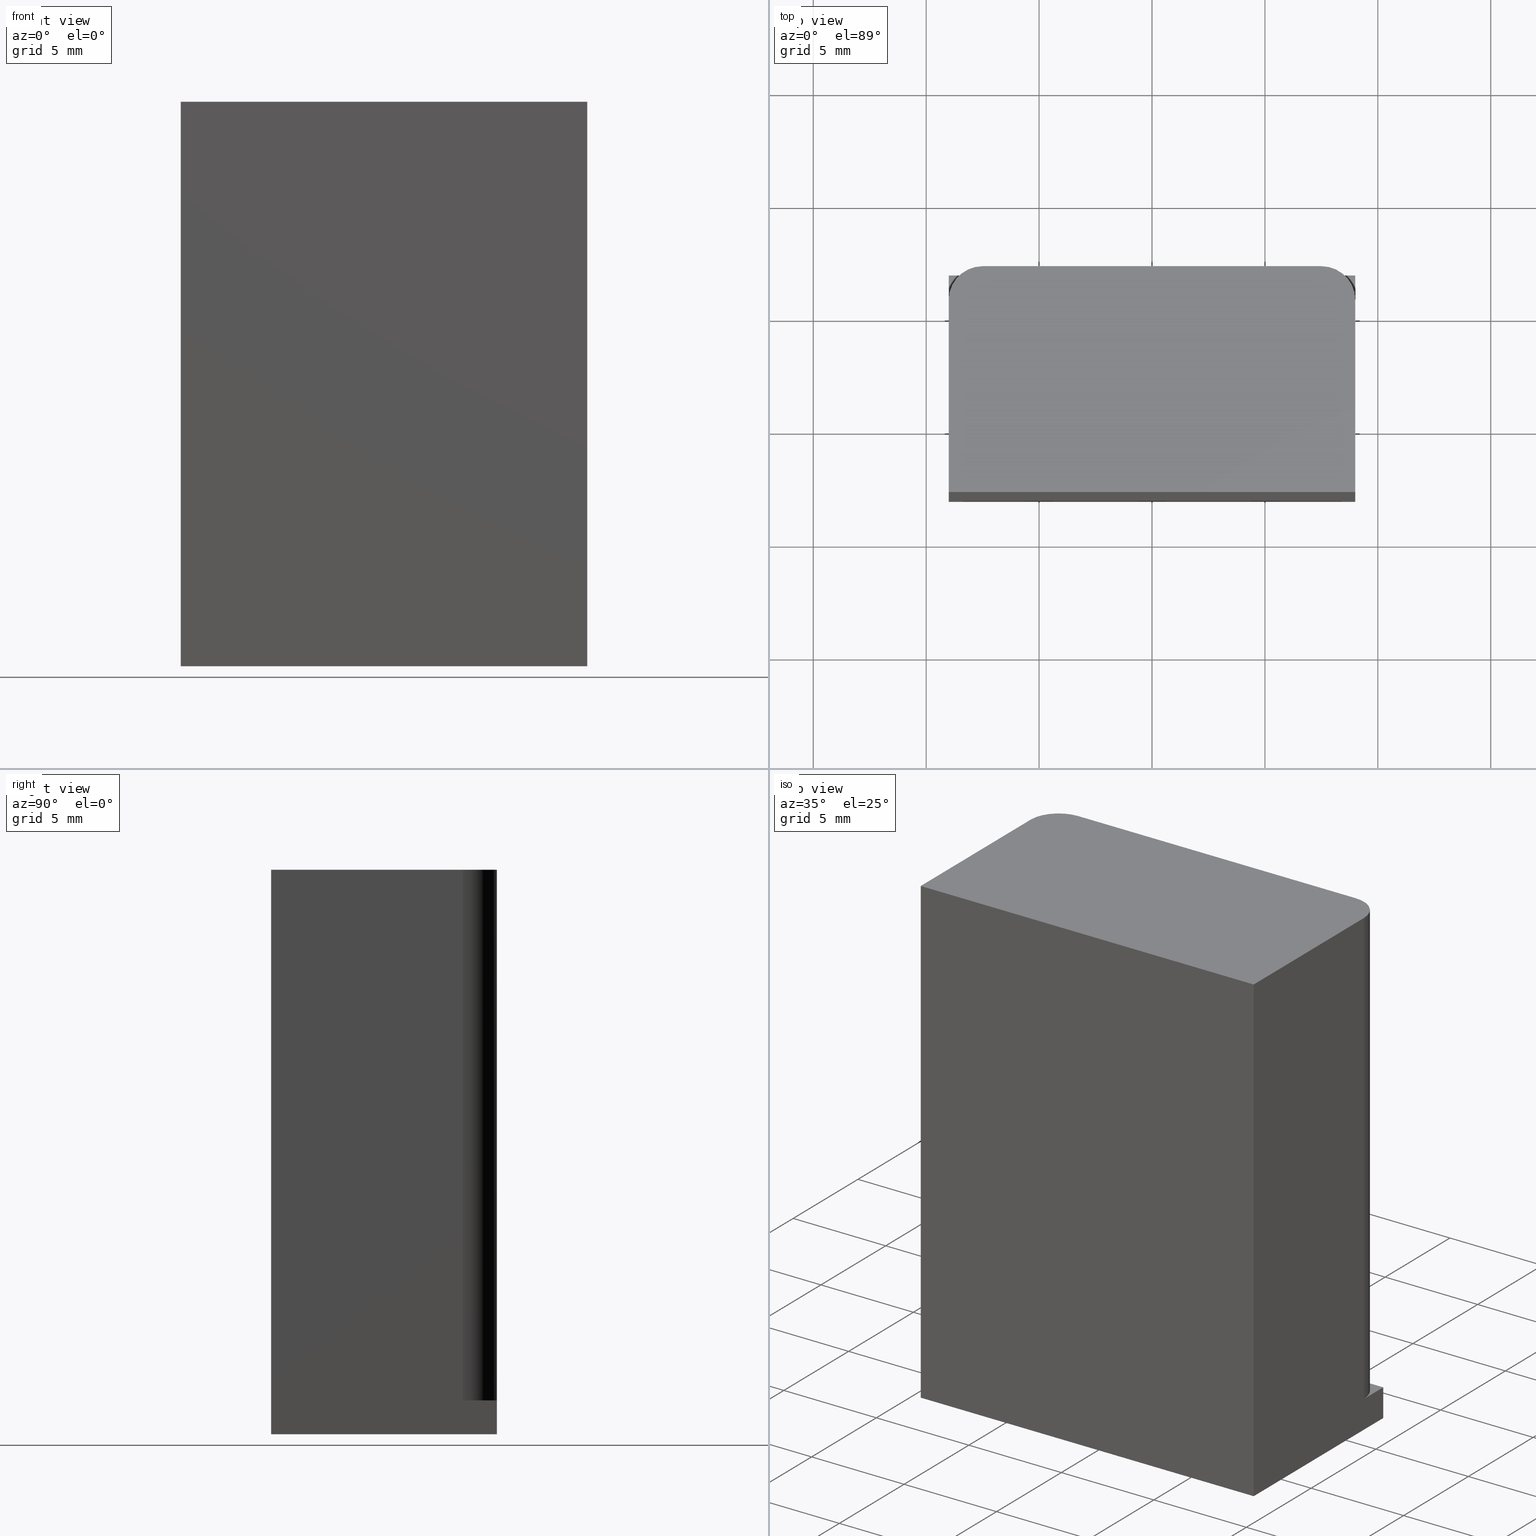
[diagram: canonical four-view strip — front | top / right | iso, engineering-drawing reading convention]
A machine part, canonical four-view strip (front | top / right | iso — engineering-drawing reading convention). The complete STEP part file that produces these views, byte-faithful:
ISO-10303-21;
HEADER;
/* Generated by software containing ST-Developer
 * from STEP Tools, Inc. (www.steptools.com) 
 */

FILE_DESCRIPTION(
/* description */ (''),
/* implementation_level */ '2;1');

FILE_NAME(
/* name */ 'E_3_01_02_00_00_WKZ-0190.stp',
/* time_stamp */ '2025-11-24T12:58:11+01:00',
/* author */ ('d.fischer'),
/* organization */ (''),
/* preprocessor_version */ 'ST-DEVELOPER v20',
/* originating_system */ 'Autodesk Inventor 2025',
/* authorisation */ '');

FILE_SCHEMA (('AUTOMOTIVE_DESIGN { 1 0 10303 214 3 1 1 }'));
ENDSEC;

DATA;
#10=MECHANICAL_DESIGN_GEOMETRIC_PRESENTATION_REPRESENTATION('',(#23,#24),
#809);
#11=ITEM_DEFINED_TRANSFORMATION($,$,#515,#551);
#12=ITEM_DEFINED_TRANSFORMATION($,$,#542,#552);
#13=(
REPRESENTATION_RELATIONSHIP($,$,#823,#822)
REPRESENTATION_RELATIONSHIP_WITH_TRANSFORMATION(#11)
SHAPE_REPRESENTATION_RELATIONSHIP()
);
#14=(
REPRESENTATION_RELATIONSHIP($,$,#824,#822)
REPRESENTATION_RELATIONSHIP_WITH_TRANSFORMATION(#12)
SHAPE_REPRESENTATION_RELATIONSHIP()
);
#15=CONTEXT_DEPENDENT_SHAPE_REPRESENTATION(#13,#820);
#16=CONTEXT_DEPENDENT_SHAPE_REPRESENTATION(#14,#821);
#17=NEXT_ASSEMBLY_USAGE_OCCURRENCE('E_3_01_02_00_00_WKZ-0190_Teil1:1',
'E_3_01_02_00_00_WKZ-0190_Teil1:1','E_3_01_02_00_00_WKZ-0190_Teil1:1',#826,
#827,'E_3_01_02_00_00_WKZ-0190_Teil1:1');
#18=NEXT_ASSEMBLY_USAGE_OCCURRENCE('E_3_01_02_00_00_WKZ-0190_Teil2:1',
'E_3_01_02_00_00_WKZ-0190_Teil2:1','E_3_01_02_00_00_WKZ-0190_Teil2:1',#826,
#828,'E_3_01_02_00_00_WKZ-0190_Teil2:1');
#19=SHAPE_REPRESENTATION_RELATIONSHIP('SRR','None',#823,#21);
#20=SHAPE_REPRESENTATION_RELATIONSHIP('SRR','None',#824,#22);
#21=ADVANCED_BREP_SHAPE_REPRESENTATION('',(#25),#807);
#22=ADVANCED_BREP_SHAPE_REPRESENTATION('',(#26),#808);
#23=STYLED_ITEM('',(#478),#25);
#24=STYLED_ITEM('',(#479),#26);
#25=MANIFOLD_SOLID_BREP('Volumenk\X\F6rper1',#450);
#26=MANIFOLD_SOLID_BREP('Volumenk\X\F6rper1',#451);
#27=FACE_BOUND('',#81,.T.);
#28=FACE_BOUND('',#82,.T.);
#29=FACE_BOUND('',#83,.T.);
#30=FACE_BOUND('',#88,.T.);
#31=FACE_BOUND('',#89,.T.);
#32=FACE_BOUND('',#90,.T.);
#33=FACE_BOUND('',#96,.T.);
#34=PLANE('',#525);
#35=PLANE('',#526);
#36=PLANE('',#527);
#37=PLANE('',#528);
#38=PLANE('',#529);
#39=PLANE('',#533);
#40=PLANE('',#537);
#41=PLANE('',#538);
#42=PLANE('',#539);
#43=PLANE('',#540);
#44=PLANE('',#541);
#45=PLANE('',#543);
#46=PLANE('',#544);
#47=PLANE('',#545);
#48=PLANE('',#546);
#49=PLANE('',#547);
#50=PLANE('',#548);
#51=PLANE('',#549);
#52=PLANE('',#550);
#53=FACE_OUTER_BOUND('',#77,.T.);
#54=FACE_OUTER_BOUND('',#78,.T.);
#55=FACE_OUTER_BOUND('',#79,.T.);
#56=FACE_OUTER_BOUND('',#80,.T.);
#57=FACE_OUTER_BOUND('',#84,.T.);
#58=FACE_OUTER_BOUND('',#85,.T.);
#59=FACE_OUTER_BOUND('',#86,.T.);
#60=FACE_OUTER_BOUND('',#87,.T.);
#61=FACE_OUTER_BOUND('',#91,.T.);
#62=FACE_OUTER_BOUND('',#92,.T.);
#63=FACE_OUTER_BOUND('',#93,.T.);
#64=FACE_OUTER_BOUND('',#94,.T.);
#65=FACE_OUTER_BOUND('',#95,.T.);
#66=FACE_OUTER_BOUND('',#97,.T.);
#67=FACE_OUTER_BOUND('',#98,.T.);
#68=FACE_OUTER_BOUND('',#99,.T.);
#69=FACE_OUTER_BOUND('',#100,.T.);
#70=FACE_OUTER_BOUND('',#101,.T.);
#71=FACE_OUTER_BOUND('',#102,.T.);
#72=FACE_OUTER_BOUND('',#103,.T.);
#73=FACE_OUTER_BOUND('',#104,.T.);
#74=FACE_OUTER_BOUND('',#105,.T.);
#75=FACE_OUTER_BOUND('',#106,.T.);
#76=FACE_OUTER_BOUND('',#107,.T.);
#77=EDGE_LOOP('',(#307,#308,#309,#310));
#78=EDGE_LOOP('',(#311,#312,#313,#314));
#79=EDGE_LOOP('',(#315,#316,#317,#318));
#80=EDGE_LOOP('',(#319,#320,#321,#322));
#81=EDGE_LOOP('',(#323));
#82=EDGE_LOOP('',(#324));
#83=EDGE_LOOP('',(#325));
#84=EDGE_LOOP('',(#326,#327,#328,#329));
#85=EDGE_LOOP('',(#330,#331,#332,#333));
#86=EDGE_LOOP('',(#334,#335,#336,#337));
#87=EDGE_LOOP('',(#338,#339,#340,#341));
#88=EDGE_LOOP('',(#342));
#89=EDGE_LOOP('',(#343));
#90=EDGE_LOOP('',(#344));
#91=EDGE_LOOP('',(#345,#346,#347,#348));
#92=EDGE_LOOP('',(#349,#350,#351,#352));
#93=EDGE_LOOP('',(#353,#354,#355,#356));
#94=EDGE_LOOP('',(#357,#358,#359,#360));
#95=EDGE_LOOP('',(#361,#362,#363,#364));
#96=EDGE_LOOP('',(#365,#366,#367,#368));
#97=EDGE_LOOP('',(#369,#370,#371,#372));
#98=EDGE_LOOP('',(#373,#374,#375,#376,#377,#378));
#99=EDGE_LOOP('',(#379,#380,#381,#382,#383,#384));
#100=EDGE_LOOP('',(#385,#386,#387,#388));
#101=EDGE_LOOP('',(#389,#390,#391,#392));
#102=EDGE_LOOP('',(#393,#394,#395,#396));
#103=EDGE_LOOP('',(#397,#398,#399,#400,#401,#402));
#104=EDGE_LOOP('',(#403,#404,#405,#406,#407,#408));
#105=EDGE_LOOP('',(#409,#410,#411,#412));
#106=EDGE_LOOP('',(#413,#414,#415,#416));
#107=EDGE_LOOP('',(#417,#418,#419,#420));
#108=LINE('',#684,#155);
#109=LINE('',#690,#156);
#110=LINE('',#696,#157);
#111=LINE('',#701,#158);
#112=LINE('',#703,#159);
#113=LINE('',#705,#160);
#114=LINE('',#706,#161);
#115=LINE('',#709,#162);
#116=LINE('',#711,#163);
#117=LINE('',#712,#164);
#118=LINE('',#715,#165);
#119=LINE('',#716,#166);
#120=LINE('',#719,#167);
#121=LINE('',#720,#168);
#122=LINE('',#722,#169);
#123=LINE('',#728,#170);
#124=LINE('',#731,#171);
#125=LINE('',#734,#172);
#126=LINE('',#736,#173);
#127=LINE('',#737,#174);
#128=LINE('',#743,#175);
#129=LINE('',#746,#176);
#130=LINE('',#748,#177);
#131=LINE('',#749,#178);
#132=LINE('',#752,#179);
#133=LINE('',#754,#180);
#134=LINE('',#755,#181);
#135=LINE('',#757,#182);
#136=LINE('',#758,#183);
#137=LINE('',#765,#184);
#138=LINE('',#767,#185);
#139=LINE('',#769,#186);
#140=LINE('',#770,#187);
#141=LINE('',#773,#188);
#142=LINE('',#775,#189);
#143=LINE('',#776,#190);
#144=LINE('',#779,#191);
#145=LINE('',#781,#192);
#146=LINE('',#782,#193);
#147=LINE('',#785,#194);
#148=LINE('',#787,#195);
#149=LINE('',#788,#196);
#150=LINE('',#791,#197);
#151=LINE('',#793,#198);
#152=LINE('',#794,#199);
#153=LINE('',#796,#200);
#154=LINE('',#797,#201);
#155=VECTOR('',#561,1.);
#156=VECTOR('',#568,1.);
#157=VECTOR('',#575,1.);
#158=VECTOR('',#580,10.);
#159=VECTOR('',#581,10.);
#160=VECTOR('',#582,10.);
#161=VECTOR('',#583,10.);
#162=VECTOR('',#586,10.);
#163=VECTOR('',#587,10.);
#164=VECTOR('',#588,10.);
#165=VECTOR('',#591,10.);
#166=VECTOR('',#592,10.);
#167=VECTOR('',#595,10.);
#168=VECTOR('',#596,10.);
#169=VECTOR('',#599,10.);
#170=VECTOR('',#604,10.);
#171=VECTOR('',#607,10.);
#172=VECTOR('',#610,10.);
#173=VECTOR('',#611,10.);
#174=VECTOR('',#612,10.);
#175=VECTOR('',#619,10.);
#176=VECTOR('',#622,10.);
#177=VECTOR('',#623,10.);
#178=VECTOR('',#624,10.);
#179=VECTOR('',#627,10.);
#180=VECTOR('',#628,10.);
#181=VECTOR('',#629,10.);
#182=VECTOR('',#632,10.);
#183=VECTOR('',#633,10.);
#184=VECTOR('',#642,10.);
#185=VECTOR('',#643,10.);
#186=VECTOR('',#644,10.);
#187=VECTOR('',#645,10.);
#188=VECTOR('',#648,10.);
#189=VECTOR('',#649,10.);
#190=VECTOR('',#650,10.);
#191=VECTOR('',#653,10.);
#192=VECTOR('',#654,10.);
#193=VECTOR('',#655,10.);
#194=VECTOR('',#658,10.);
#195=VECTOR('',#659,10.);
#196=VECTOR('',#660,10.);
#197=VECTOR('',#663,10.);
#198=VECTOR('',#664,10.);
#199=VECTOR('',#665,10.);
#200=VECTOR('',#668,10.);
#201=VECTOR('',#669,10.);
#202=CIRCLE('',#517,1.);
#203=CIRCLE('',#518,1.);
#204=CIRCLE('',#520,1.);
#205=CIRCLE('',#521,1.);
#206=CIRCLE('',#523,1.);
#207=CIRCLE('',#524,1.);
#208=CIRCLE('',#531,1.5);
#209=CIRCLE('',#532,1.5);
#210=CIRCLE('',#535,1.5);
#211=CIRCLE('',#536,1.5);
#212=VERTEX_POINT('',#681);
#213=VERTEX_POINT('',#683);
#214=VERTEX_POINT('',#687);
#215=VERTEX_POINT('',#689);
#216=VERTEX_POINT('',#693);
#217=VERTEX_POINT('',#695);
#218=VERTEX_POINT('',#699);
#219=VERTEX_POINT('',#700);
#220=VERTEX_POINT('',#702);
#221=VERTEX_POINT('',#704);
#222=VERTEX_POINT('',#708);
#223=VERTEX_POINT('',#710);
#224=VERTEX_POINT('',#714);
#225=VERTEX_POINT('',#718);
#226=VERTEX_POINT('',#724);
#227=VERTEX_POINT('',#725);
#228=VERTEX_POINT('',#727);
#229=VERTEX_POINT('',#729);
#230=VERTEX_POINT('',#733);
#231=VERTEX_POINT('',#735);
#232=VERTEX_POINT('',#739);
#233=VERTEX_POINT('',#741);
#234=VERTEX_POINT('',#745);
#235=VERTEX_POINT('',#747);
#236=VERTEX_POINT('',#751);
#237=VERTEX_POINT('',#753);
#238=VERTEX_POINT('',#763);
#239=VERTEX_POINT('',#764);
#240=VERTEX_POINT('',#766);
#241=VERTEX_POINT('',#768);
#242=VERTEX_POINT('',#772);
#243=VERTEX_POINT('',#774);
#244=VERTEX_POINT('',#778);
#245=VERTEX_POINT('',#780);
#246=VERTEX_POINT('',#784);
#247=VERTEX_POINT('',#786);
#248=VERTEX_POINT('',#790);
#249=VERTEX_POINT('',#792);
#250=EDGE_CURVE('',#212,#212,#202,.T.);
#251=EDGE_CURVE('',#212,#213,#108,.T.);
#252=EDGE_CURVE('',#213,#213,#203,.T.);
#253=EDGE_CURVE('',#214,#214,#204,.T.);
#254=EDGE_CURVE('',#214,#215,#109,.T.);
#255=EDGE_CURVE('',#215,#215,#205,.T.);
#256=EDGE_CURVE('',#216,#216,#206,.T.);
#257=EDGE_CURVE('',#216,#217,#110,.T.);
#258=EDGE_CURVE('',#217,#217,#207,.T.);
#259=EDGE_CURVE('',#218,#219,#111,.T.);
#260=EDGE_CURVE('',#218,#220,#112,.T.);
#261=EDGE_CURVE('',#220,#221,#113,.T.);
#262=EDGE_CURVE('',#221,#219,#114,.T.);
#263=EDGE_CURVE('',#222,#218,#115,.T.);
#264=EDGE_CURVE('',#223,#222,#116,.T.);
#265=EDGE_CURVE('',#220,#223,#117,.T.);
#266=EDGE_CURVE('',#224,#223,#118,.T.);
#267=EDGE_CURVE('',#221,#224,#119,.T.);
#268=EDGE_CURVE('',#225,#224,#120,.T.);
#269=EDGE_CURVE('',#219,#225,#121,.T.);
#270=EDGE_CURVE('',#225,#222,#122,.T.);
#271=EDGE_CURVE('',#226,#227,#208,.T.);
#272=EDGE_CURVE('',#226,#228,#123,.T.);
#273=EDGE_CURVE('',#229,#228,#209,.T.);
#274=EDGE_CURVE('',#227,#229,#124,.T.);
#275=EDGE_CURVE('',#227,#230,#125,.T.);
#276=EDGE_CURVE('',#231,#229,#126,.T.);
#277=EDGE_CURVE('',#230,#231,#127,.T.);
#278=EDGE_CURVE('',#230,#232,#210,.T.);
#279=EDGE_CURVE('',#233,#231,#211,.T.);
#280=EDGE_CURVE('',#232,#233,#128,.T.);
#281=EDGE_CURVE('',#232,#234,#129,.T.);
#282=EDGE_CURVE('',#235,#233,#130,.T.);
#283=EDGE_CURVE('',#234,#235,#131,.T.);
#284=EDGE_CURVE('',#234,#236,#132,.T.);
#285=EDGE_CURVE('',#237,#235,#133,.T.);
#286=EDGE_CURVE('',#236,#237,#134,.T.);
#287=EDGE_CURVE('',#236,#226,#135,.T.);
#288=EDGE_CURVE('',#228,#237,#136,.T.);
#289=EDGE_CURVE('',#238,#239,#137,.T.);
#290=EDGE_CURVE('',#240,#238,#138,.T.);
#291=EDGE_CURVE('',#240,#241,#139,.T.);
#292=EDGE_CURVE('',#239,#241,#140,.T.);
#293=EDGE_CURVE('',#242,#240,#141,.T.);
#294=EDGE_CURVE('',#243,#242,#142,.T.);
#295=EDGE_CURVE('',#241,#243,#143,.T.);
#296=EDGE_CURVE('',#244,#242,#144,.T.);
#297=EDGE_CURVE('',#244,#245,#145,.T.);
#298=EDGE_CURVE('',#245,#243,#146,.T.);
#299=EDGE_CURVE('',#246,#238,#147,.T.);
#300=EDGE_CURVE('',#247,#246,#148,.T.);
#301=EDGE_CURVE('',#247,#244,#149,.T.);
#302=EDGE_CURVE('',#245,#248,#150,.T.);
#303=EDGE_CURVE('',#248,#249,#151,.T.);
#304=EDGE_CURVE('',#239,#249,#152,.T.);
#305=EDGE_CURVE('',#248,#247,#153,.T.);
#306=EDGE_CURVE('',#249,#246,#154,.T.);
#307=ORIENTED_EDGE('',*,*,#250,.F.);
#308=ORIENTED_EDGE('',*,*,#251,.T.);
#309=ORIENTED_EDGE('',*,*,#252,.F.);
#310=ORIENTED_EDGE('',*,*,#251,.F.);
#311=ORIENTED_EDGE('',*,*,#253,.F.);
#312=ORIENTED_EDGE('',*,*,#254,.T.);
#313=ORIENTED_EDGE('',*,*,#255,.F.);
#314=ORIENTED_EDGE('',*,*,#254,.F.);
#315=ORIENTED_EDGE('',*,*,#256,.F.);
#316=ORIENTED_EDGE('',*,*,#257,.T.);
#317=ORIENTED_EDGE('',*,*,#258,.F.);
#318=ORIENTED_EDGE('',*,*,#257,.F.);
#319=ORIENTED_EDGE('',*,*,#259,.F.);
#320=ORIENTED_EDGE('',*,*,#260,.T.);
#321=ORIENTED_EDGE('',*,*,#261,.T.);
#322=ORIENTED_EDGE('',*,*,#262,.T.);
#323=ORIENTED_EDGE('',*,*,#250,.T.);
#324=ORIENTED_EDGE('',*,*,#253,.T.);
#325=ORIENTED_EDGE('',*,*,#256,.T.);
#326=ORIENTED_EDGE('',*,*,#263,.F.);
#327=ORIENTED_EDGE('',*,*,#264,.F.);
#328=ORIENTED_EDGE('',*,*,#265,.F.);
#329=ORIENTED_EDGE('',*,*,#260,.F.);
#330=ORIENTED_EDGE('',*,*,#265,.T.);
#331=ORIENTED_EDGE('',*,*,#266,.F.);
#332=ORIENTED_EDGE('',*,*,#267,.F.);
#333=ORIENTED_EDGE('',*,*,#261,.F.);
#334=ORIENTED_EDGE('',*,*,#267,.T.);
#335=ORIENTED_EDGE('',*,*,#268,.F.);
#336=ORIENTED_EDGE('',*,*,#269,.F.);
#337=ORIENTED_EDGE('',*,*,#262,.F.);
#338=ORIENTED_EDGE('',*,*,#270,.F.);
#339=ORIENTED_EDGE('',*,*,#268,.T.);
#340=ORIENTED_EDGE('',*,*,#266,.T.);
#341=ORIENTED_EDGE('',*,*,#264,.T.);
#342=ORIENTED_EDGE('',*,*,#252,.T.);
#343=ORIENTED_EDGE('',*,*,#255,.T.);
#344=ORIENTED_EDGE('',*,*,#258,.T.);
#345=ORIENTED_EDGE('',*,*,#271,.F.);
#346=ORIENTED_EDGE('',*,*,#272,.T.);
#347=ORIENTED_EDGE('',*,*,#273,.F.);
#348=ORIENTED_EDGE('',*,*,#274,.F.);
#349=ORIENTED_EDGE('',*,*,#275,.F.);
#350=ORIENTED_EDGE('',*,*,#274,.T.);
#351=ORIENTED_EDGE('',*,*,#276,.F.);
#352=ORIENTED_EDGE('',*,*,#277,.F.);
#353=ORIENTED_EDGE('',*,*,#278,.F.);
#354=ORIENTED_EDGE('',*,*,#277,.T.);
#355=ORIENTED_EDGE('',*,*,#279,.F.);
#356=ORIENTED_EDGE('',*,*,#280,.F.);
#357=ORIENTED_EDGE('',*,*,#281,.F.);
#358=ORIENTED_EDGE('',*,*,#280,.T.);
#359=ORIENTED_EDGE('',*,*,#282,.F.);
#360=ORIENTED_EDGE('',*,*,#283,.F.);
#361=ORIENTED_EDGE('',*,*,#284,.F.);
#362=ORIENTED_EDGE('',*,*,#283,.T.);
#363=ORIENTED_EDGE('',*,*,#285,.F.);
#364=ORIENTED_EDGE('',*,*,#286,.F.);
#365=ORIENTED_EDGE('',*,*,#259,.T.);
#366=ORIENTED_EDGE('',*,*,#269,.T.);
#367=ORIENTED_EDGE('',*,*,#270,.T.);
#368=ORIENTED_EDGE('',*,*,#263,.T.);
#369=ORIENTED_EDGE('',*,*,#287,.F.);
#370=ORIENTED_EDGE('',*,*,#286,.T.);
#371=ORIENTED_EDGE('',*,*,#288,.F.);
#372=ORIENTED_EDGE('',*,*,#272,.F.);
#373=ORIENTED_EDGE('',*,*,#288,.T.);
#374=ORIENTED_EDGE('',*,*,#285,.T.);
#375=ORIENTED_EDGE('',*,*,#282,.T.);
#376=ORIENTED_EDGE('',*,*,#279,.T.);
#377=ORIENTED_EDGE('',*,*,#276,.T.);
#378=ORIENTED_EDGE('',*,*,#273,.T.);
#379=ORIENTED_EDGE('',*,*,#287,.T.);
#380=ORIENTED_EDGE('',*,*,#271,.T.);
#381=ORIENTED_EDGE('',*,*,#275,.T.);
#382=ORIENTED_EDGE('',*,*,#278,.T.);
#383=ORIENTED_EDGE('',*,*,#281,.T.);
#384=ORIENTED_EDGE('',*,*,#284,.T.);
#385=ORIENTED_EDGE('',*,*,#289,.F.);
#386=ORIENTED_EDGE('',*,*,#290,.F.);
#387=ORIENTED_EDGE('',*,*,#291,.T.);
#388=ORIENTED_EDGE('',*,*,#292,.F.);
#389=ORIENTED_EDGE('',*,*,#293,.F.);
#390=ORIENTED_EDGE('',*,*,#294,.F.);
#391=ORIENTED_EDGE('',*,*,#295,.F.);
#392=ORIENTED_EDGE('',*,*,#291,.F.);
#393=ORIENTED_EDGE('',*,*,#294,.T.);
#394=ORIENTED_EDGE('',*,*,#296,.F.);
#395=ORIENTED_EDGE('',*,*,#297,.T.);
#396=ORIENTED_EDGE('',*,*,#298,.T.);
#397=ORIENTED_EDGE('',*,*,#293,.T.);
#398=ORIENTED_EDGE('',*,*,#290,.T.);
#399=ORIENTED_EDGE('',*,*,#299,.F.);
#400=ORIENTED_EDGE('',*,*,#300,.F.);
#401=ORIENTED_EDGE('',*,*,#301,.T.);
#402=ORIENTED_EDGE('',*,*,#296,.T.);
#403=ORIENTED_EDGE('',*,*,#295,.T.);
#404=ORIENTED_EDGE('',*,*,#298,.F.);
#405=ORIENTED_EDGE('',*,*,#302,.T.);
#406=ORIENTED_EDGE('',*,*,#303,.T.);
#407=ORIENTED_EDGE('',*,*,#304,.F.);
#408=ORIENTED_EDGE('',*,*,#292,.T.);
#409=ORIENTED_EDGE('',*,*,#305,.T.);
#410=ORIENTED_EDGE('',*,*,#300,.T.);
#411=ORIENTED_EDGE('',*,*,#306,.F.);
#412=ORIENTED_EDGE('',*,*,#303,.F.);
#413=ORIENTED_EDGE('',*,*,#289,.T.);
#414=ORIENTED_EDGE('',*,*,#304,.T.);
#415=ORIENTED_EDGE('',*,*,#306,.T.);
#416=ORIENTED_EDGE('',*,*,#299,.T.);
#417=ORIENTED_EDGE('',*,*,#305,.F.);
#418=ORIENTED_EDGE('',*,*,#302,.F.);
#419=ORIENTED_EDGE('',*,*,#297,.F.);
#420=ORIENTED_EDGE('',*,*,#301,.F.);
#421=CYLINDRICAL_SURFACE('',#516,1.);
#422=CYLINDRICAL_SURFACE('',#519,1.);
#423=CYLINDRICAL_SURFACE('',#522,1.);
#424=CYLINDRICAL_SURFACE('',#530,1.5);
#425=CYLINDRICAL_SURFACE('',#534,1.5);
#426=ADVANCED_FACE('',(#53),#421,.F.);
#427=ADVANCED_FACE('',(#54),#422,.F.);
#428=ADVANCED_FACE('',(#55),#423,.F.);
#429=ADVANCED_FACE('',(#56,#27,#28,#29),#34,.T.);
#430=ADVANCED_FACE('',(#57),#35,.T.);
#431=ADVANCED_FACE('',(#58),#36,.T.);
#432=ADVANCED_FACE('',(#59),#37,.T.);
#433=ADVANCED_FACE('',(#60,#30,#31,#32),#38,.F.);
#434=ADVANCED_FACE('',(#61),#424,.T.);
#435=ADVANCED_FACE('',(#62),#39,.T.);
#436=ADVANCED_FACE('',(#63),#425,.T.);
#437=ADVANCED_FACE('',(#64),#40,.T.);
#438=ADVANCED_FACE('',(#65,#33),#41,.T.);
#439=ADVANCED_FACE('',(#66),#42,.T.);
#440=ADVANCED_FACE('',(#67),#43,.T.);
#441=ADVANCED_FACE('',(#68),#44,.F.);
#442=ADVANCED_FACE('',(#69),#45,.F.);
#443=ADVANCED_FACE('',(#70),#46,.T.);
#444=ADVANCED_FACE('',(#71),#47,.T.);
#445=ADVANCED_FACE('',(#72),#48,.T.);
#446=ADVANCED_FACE('',(#73),#49,.T.);
#447=ADVANCED_FACE('',(#74),#50,.T.);
#448=ADVANCED_FACE('',(#75),#51,.T.);
#449=ADVANCED_FACE('',(#76),#52,.F.);
#450=CLOSED_SHELL('',(#426,#427,#428,#429,#430,#431,#432,#433,#434,#435,
#436,#437,#438,#439,#440,#441));
#451=CLOSED_SHELL('',(#442,#443,#444,#445,#446,#447,#448,#449));
#452=DERIVED_UNIT_ELEMENT(#457,1.);
#453=DERIVED_UNIT_ELEMENT(#811,-3.);
#454=DERIVED_UNIT_ELEMENT(#457,1.);
#455=DERIVED_UNIT_ELEMENT(#811,-3.);
#456=DIMENSIONAL_EXPONENTS(0.,1.,0.,0.,0.,0.,0.);
#457=(
CONVERSION_BASED_UNIT('gram',#459)
MASS_UNIT()
NAMED_UNIT(#456)
);
#458=(
MASS_UNIT()
NAMED_UNIT(*)
SI_UNIT(.KILO.,.GRAM.)
);
#459=MASS_MEASURE_WITH_UNIT(MASS_MEASURE(0.001),#458);
#460=DERIVED_UNIT((#452,#453));
#461=DERIVED_UNIT((#454,#455));
#462=MEASURE_REPRESENTATION_ITEM('density measure',
POSITIVE_RATIO_MEASURE(1.),#460);
#463=MEASURE_REPRESENTATION_ITEM('density measure',
POSITIVE_RATIO_MEASURE(1.06),#461);
#464=PROPERTY_DEFINITION_REPRESENTATION(#474,#468);
#465=PROPERTY_DEFINITION_REPRESENTATION(#475,#469);
#466=PROPERTY_DEFINITION_REPRESENTATION(#476,#470);
#467=PROPERTY_DEFINITION_REPRESENTATION(#477,#471);
#468=REPRESENTATION('material name',(#472),#807);
#469=REPRESENTATION('density',(#462),#807);
#470=REPRESENTATION('material name',(#473),#808);
#471=REPRESENTATION('density',(#463),#808);
#472=DESCRIPTIVE_REPRESENTATION_ITEM('Allgemein','Allgemein');
#473=DESCRIPTIVE_REPRESENTATION_ITEM('ABS-Kunststoff','ABS-Kunststoff');
#474=PROPERTY_DEFINITION('material property','material name',#827);
#475=PROPERTY_DEFINITION('material property','density of part',#827);
#476=PROPERTY_DEFINITION('material property','material name',#828);
#477=PROPERTY_DEFINITION('material property','density of part',#828);
#478=PRESENTATION_STYLE_ASSIGNMENT((#480));
#479=PRESENTATION_STYLE_ASSIGNMENT((#481));
#480=SURFACE_STYLE_USAGE(.BOTH.,#486);
#481=SURFACE_STYLE_USAGE(.BOTH.,#487);
#482=SURFACE_STYLE_RENDERING_WITH_PROPERTIES($,#494,(#484));
#483=SURFACE_STYLE_RENDERING_WITH_PROPERTIES($,#495,(#485));
#484=SURFACE_STYLE_TRANSPARENT(0.);
#485=SURFACE_STYLE_TRANSPARENT(0.);
#486=SURFACE_SIDE_STYLE('',(#488,#482));
#487=SURFACE_SIDE_STYLE('',(#489,#483));
#488=SURFACE_STYLE_FILL_AREA(#490);
#489=SURFACE_STYLE_FILL_AREA(#491);
#490=FILL_AREA_STYLE('',(#492));
#491=FILL_AREA_STYLE('',(#493));
#492=FILL_AREA_STYLE_COLOUR('',#494);
#493=FILL_AREA_STYLE_COLOUR('',#495);
#494=COLOUR_RGB('',0.905882352941176,0.83921568627451,0.674509803921569);
#495=COLOUR_RGB('',0.850980392156863,0.847058823529412,0.913725490196078);
#496=DATE_TIME_ROLE('creation_date');
#497=DATE_TIME_ROLE('creation_date');
#498=DATE_TIME_ROLE('creation_date');
#499=APPLIED_DATE_AND_TIME_ASSIGNMENT(#502,#496,(#826));
#500=APPLIED_DATE_AND_TIME_ASSIGNMENT(#503,#497,(#827));
#501=APPLIED_DATE_AND_TIME_ASSIGNMENT(#504,#498,(#828));
#502=DATE_AND_TIME(#505,#508);
#503=DATE_AND_TIME(#506,#509);
#504=DATE_AND_TIME(#507,#510);
#505=CALENDAR_DATE(2013,16,8);
#506=CALENDAR_DATE(2013,16,8);
#507=CALENDAR_DATE(2013,16,8);
#508=LOCAL_TIME(0,0,0.,#511);
#509=LOCAL_TIME(0,0,0.,#512);
#510=LOCAL_TIME(0,0,0.,#513);
#511=COORDINATED_UNIVERSAL_TIME_OFFSET(0,0,.BEHIND.);
#512=COORDINATED_UNIVERSAL_TIME_OFFSET(0,0,.BEHIND.);
#513=COORDINATED_UNIVERSAL_TIME_OFFSET(0,0,.BEHIND.);
#514=AXIS2_PLACEMENT_3D('',#678,#553,#554);
#515=AXIS2_PLACEMENT_3D('',#679,#555,#556);
#516=AXIS2_PLACEMENT_3D('',#680,#557,#558);
#517=AXIS2_PLACEMENT_3D('',#682,#559,#560);
#518=AXIS2_PLACEMENT_3D('',#685,#562,#563);
#519=AXIS2_PLACEMENT_3D('',#686,#564,#565);
#520=AXIS2_PLACEMENT_3D('',#688,#566,#567);
#521=AXIS2_PLACEMENT_3D('',#691,#569,#570);
#522=AXIS2_PLACEMENT_3D('',#692,#571,#572);
#523=AXIS2_PLACEMENT_3D('',#694,#573,#574);
#524=AXIS2_PLACEMENT_3D('',#697,#576,#577);
#525=AXIS2_PLACEMENT_3D('',#698,#578,#579);
#526=AXIS2_PLACEMENT_3D('',#707,#584,#585);
#527=AXIS2_PLACEMENT_3D('',#713,#589,#590);
#528=AXIS2_PLACEMENT_3D('',#717,#593,#594);
#529=AXIS2_PLACEMENT_3D('',#721,#597,#598);
#530=AXIS2_PLACEMENT_3D('',#723,#600,#601);
#531=AXIS2_PLACEMENT_3D('',#726,#602,#603);
#532=AXIS2_PLACEMENT_3D('',#730,#605,#606);
#533=AXIS2_PLACEMENT_3D('',#732,#608,#609);
#534=AXIS2_PLACEMENT_3D('',#738,#613,#614);
#535=AXIS2_PLACEMENT_3D('',#740,#615,#616);
#536=AXIS2_PLACEMENT_3D('',#742,#617,#618);
#537=AXIS2_PLACEMENT_3D('',#744,#620,#621);
#538=AXIS2_PLACEMENT_3D('',#750,#625,#626);
#539=AXIS2_PLACEMENT_3D('',#756,#630,#631);
#540=AXIS2_PLACEMENT_3D('',#759,#634,#635);
#541=AXIS2_PLACEMENT_3D('',#760,#636,#637);
#542=AXIS2_PLACEMENT_3D('',#761,#638,#639);
#543=AXIS2_PLACEMENT_3D('',#762,#640,#641);
#544=AXIS2_PLACEMENT_3D('',#771,#646,#647);
#545=AXIS2_PLACEMENT_3D('',#777,#651,#652);
#546=AXIS2_PLACEMENT_3D('',#783,#656,#657);
#547=AXIS2_PLACEMENT_3D('',#789,#661,#662);
#548=AXIS2_PLACEMENT_3D('',#795,#666,#667);
#549=AXIS2_PLACEMENT_3D('',#798,#670,#671);
#550=AXIS2_PLACEMENT_3D('',#799,#672,#673);
#551=AXIS2_PLACEMENT_3D('',#800,#674,#675);
#552=AXIS2_PLACEMENT_3D('',#801,#676,#677);
#553=DIRECTION('axis',(0.,0.,1.));
#554=DIRECTION('refdir',(1.,0.,0.));
#555=DIRECTION('axis',(0.,0.,1.));
#556=DIRECTION('refdir',(1.,0.,0.));
#557=DIRECTION('center_axis',(0.,0.,1.));
#558=DIRECTION('ref_axis',(1.,0.,0.));
#559=DIRECTION('center_axis',(0.,0.,-1.));
#560=DIRECTION('ref_axis',(1.,0.,0.));
#561=DIRECTION('',(0.,0.,-1.));
#562=DIRECTION('center_axis',(0.,0.,1.));
#563=DIRECTION('ref_axis',(1.,0.,0.));
#564=DIRECTION('center_axis',(0.,0.,1.));
#565=DIRECTION('ref_axis',(1.,0.,0.));
#566=DIRECTION('center_axis',(0.,0.,-1.));
#567=DIRECTION('ref_axis',(1.,0.,0.));
#568=DIRECTION('',(0.,0.,-1.));
#569=DIRECTION('center_axis',(0.,0.,1.));
#570=DIRECTION('ref_axis',(1.,0.,0.));
#571=DIRECTION('center_axis',(0.,0.,1.));
#572=DIRECTION('ref_axis',(1.,0.,0.));
#573=DIRECTION('center_axis',(0.,0.,-1.));
#574=DIRECTION('ref_axis',(1.,0.,0.));
#575=DIRECTION('',(0.,0.,-1.));
#576=DIRECTION('center_axis',(0.,0.,1.));
#577=DIRECTION('ref_axis',(1.,0.,0.));
#578=DIRECTION('center_axis',(0.,0.,1.));
#579=DIRECTION('ref_axis',(1.,0.,0.));
#580=DIRECTION('',(1.,4.31753398465339E-16,0.));
#581=DIRECTION('',(0.,-1.,0.));
#582=DIRECTION('',(1.,3.1720657846433E-16,0.));
#583=DIRECTION('',(-5.55111512312578E-16,1.,0.));
#584=DIRECTION('center_axis',(-1.,0.,0.));
#585=DIRECTION('ref_axis',(0.,1.,0.));
#586=DIRECTION('',(0.,0.,1.));
#587=DIRECTION('',(0.,1.,0.));
#588=DIRECTION('',(0.,0.,-1.));
#589=DIRECTION('center_axis',(3.1720657846433E-16,-1.,0.));
#590=DIRECTION('ref_axis',(-1.,-3.1720657846433E-16,0.));
#591=DIRECTION('',(-1.,-3.1720657846433E-16,0.));
#592=DIRECTION('',(0.,0.,-1.));
#593=DIRECTION('center_axis',(1.,5.55111512312578E-16,0.));
#594=DIRECTION('ref_axis',(5.55111512312578E-16,-1.,0.));
#595=DIRECTION('',(5.55111512312578E-16,-1.,0.));
#596=DIRECTION('',(0.,0.,-1.));
#597=DIRECTION('center_axis',(0.,0.,1.));
#598=DIRECTION('ref_axis',(1.,0.,0.));
#599=DIRECTION('',(-1.,-4.31753398465339E-16,0.));
#600=DIRECTION('center_axis',(0.,0.,1.));
#601=DIRECTION('ref_axis',(7.40148683083437E-16,-1.,0.));
#602=DIRECTION('center_axis',(0.,0.,-1.));
#603=DIRECTION('ref_axis',(7.40148683083437E-16,-1.,0.));
#604=DIRECTION('',(0.,0.,1.));
#605=DIRECTION('center_axis',(0.,0.,1.));
#606=DIRECTION('ref_axis',(7.40148683083437E-16,-1.,0.));
#607=DIRECTION('',(0.,0.,1.));
#608=DIRECTION('center_axis',(-4.07081775695891E-16,1.,0.));
#609=DIRECTION('ref_axis',(-1.,-4.07081775695891E-16,0.));
#610=DIRECTION('',(1.,4.07081775695891E-16,0.));
#611=DIRECTION('',(-1.,-4.07081775695891E-16,0.));
#612=DIRECTION('',(0.,0.,1.));
#613=DIRECTION('center_axis',(0.,0.,1.));
#614=DIRECTION('ref_axis',(-1.,-7.40148683083438E-16,0.));
#615=DIRECTION('center_axis',(0.,0.,-1.));
#616=DIRECTION('ref_axis',(-1.,-7.40148683083438E-16,0.));
#617=DIRECTION('center_axis',(0.,0.,1.));
#618=DIRECTION('ref_axis',(-1.,-7.40148683083438E-16,0.));
#619=DIRECTION('',(0.,0.,1.));
#620=DIRECTION('center_axis',(1.,2.22044604925029E-15,0.));
#621=DIRECTION('ref_axis',(-2.22044604925029E-15,1.,0.));
#622=DIRECTION('',(2.22044604925029E-15,-1.,0.));
#623=DIRECTION('',(-2.22044604925029E-15,1.,0.));
#624=DIRECTION('',(0.,0.,1.));
#625=DIRECTION('center_axis',(4.31753398465339E-16,-1.,0.));
#626=DIRECTION('ref_axis',(1.,4.31753398465339E-16,0.));
#627=DIRECTION('',(-1.,-4.31753398465339E-16,0.));
#628=DIRECTION('',(1.,4.31753398465339E-16,0.));
#629=DIRECTION('',(0.,0.,1.));
#630=DIRECTION('center_axis',(-1.,2.22044604925028E-15,0.));
#631=DIRECTION('ref_axis',(-2.22044604925028E-15,-1.,0.));
#632=DIRECTION('',(2.22044604925028E-15,1.,0.));
#633=DIRECTION('',(-2.22044604925028E-15,-1.,0.));
#634=DIRECTION('center_axis',(0.,0.,1.));
#635=DIRECTION('ref_axis',(1.,0.,0.));
#636=DIRECTION('center_axis',(0.,0.,1.));
#637=DIRECTION('ref_axis',(1.,0.,0.));
#638=DIRECTION('axis',(0.,0.,1.));
#639=DIRECTION('refdir',(1.,0.,0.));
#640=DIRECTION('center_axis',(1.2335811384724E-16,-1.,0.));
#641=DIRECTION('ref_axis',(-1.,-1.2335811384724E-16,0.));
#642=DIRECTION('',(-1.,-1.2335811384724E-16,0.));
#643=DIRECTION('',(0.,0.,1.));
#644=DIRECTION('',(-1.,-1.2335811384724E-16,0.));
#645=DIRECTION('',(0.,0.,-1.));
#646=DIRECTION('center_axis',(0.,0.,1.));
#647=DIRECTION('ref_axis',(1.,0.,0.));
#648=DIRECTION('',(8.88178419700125E-16,-1.,0.));
#649=DIRECTION('',(1.,3.08395284618099E-16,0.));
#650=DIRECTION('',(3.33066907387547E-16,1.,0.));
#651=DIRECTION('center_axis',(-3.08395284618099E-16,1.,0.));
#652=DIRECTION('ref_axis',(-1.,-3.08395284618099E-16,0.));
#653=DIRECTION('',(0.,0.,1.));
#654=DIRECTION('',(-1.,-3.08395284618099E-16,0.));
#655=DIRECTION('',(0.,0.,1.));
#656=DIRECTION('center_axis',(1.,8.88178419700125E-16,0.));
#657=DIRECTION('ref_axis',(-8.88178419700125E-16,1.,0.));
#658=DIRECTION('',(-8.88178419700125E-16,1.,0.));
#659=DIRECTION('',(0.,0.,1.));
#660=DIRECTION('',(-8.88178419700125E-16,1.,0.));
#661=DIRECTION('center_axis',(-1.,3.33066907387547E-16,0.));
#662=DIRECTION('ref_axis',(-3.33066907387547E-16,-1.,0.));
#663=DIRECTION('',(-3.33066907387547E-16,-1.,0.));
#664=DIRECTION('',(0.,0.,1.));
#665=DIRECTION('',(-3.33066907387547E-16,-1.,0.));
#666=DIRECTION('center_axis',(3.08395284618099E-16,-1.,0.));
#667=DIRECTION('ref_axis',(1.,3.08395284618099E-16,0.));
#668=DIRECTION('',(1.,3.08395284618099E-16,0.));
#669=DIRECTION('',(1.,3.08395284618099E-16,0.));
#670=DIRECTION('center_axis',(0.,0.,1.));
#671=DIRECTION('ref_axis',(1.,0.,0.));
#672=DIRECTION('center_axis',(0.,0.,1.));
#673=DIRECTION('ref_axis',(1.,0.,0.));
#674=DIRECTION('',(0.,0.,1.));
#675=DIRECTION('',(1.,0.,0.));
#676=DIRECTION('',(0.,0.,1.));
#677=DIRECTION('',(1.,0.,0.));
#678=CARTESIAN_POINT('',(0.,0.,0.));
#679=CARTESIAN_POINT('',(0.,0.,0.));
#680=CARTESIAN_POINT('Origin',(4.,-2.,-17.2034766210779));
#681=CARTESIAN_POINT('',(3.,-2.,13.));
#682=CARTESIAN_POINT('Origin',(4.,-2.,13.));
#683=CARTESIAN_POINT('',(3.,-2.,9.));
#684=CARTESIAN_POINT('',(3.,-2.,-17.2034766210779));
#685=CARTESIAN_POINT('Origin',(4.,-2.,9.));
#686=CARTESIAN_POINT('Origin',(1.11543231344587E-15,-2.,-17.2034766210779));
#687=CARTESIAN_POINT('',(-0.999999999999999,-2.,13.));
#688=CARTESIAN_POINT('Origin',(1.11543231344587E-15,-2.,13.));
#689=CARTESIAN_POINT('',(-0.999999999999999,-2.,9.));
#690=CARTESIAN_POINT('',(-0.999999999999999,-2.,-17.2034766210779));
#691=CARTESIAN_POINT('Origin',(1.11543231344587E-15,-2.,9.));
#692=CARTESIAN_POINT('Origin',(-4.,-2.,-17.2034766210779));
#693=CARTESIAN_POINT('',(-5.,-2.,13.));
#694=CARTESIAN_POINT('Origin',(-4.,-2.,13.));
#695=CARTESIAN_POINT('',(-5.,-2.,9.));
#696=CARTESIAN_POINT('',(-5.,-2.,-17.2034766210779));
#697=CARTESIAN_POINT('Origin',(-4.,-2.,9.));
#698=CARTESIAN_POINT('Origin',(2.31296463463574E-16,-2.,13.));
#699=CARTESIAN_POINT('',(-7.,-3.33066907387547E-15,13.));
#700=CARTESIAN_POINT('',(7.,0.,13.));
#701=CARTESIAN_POINT('',(-4.5,-2.77555756156289E-16,13.));
#702=CARTESIAN_POINT('',(-7.,-4.,13.));
#703=CARTESIAN_POINT('',(-7.,-4.,13.));
#704=CARTESIAN_POINT('',(7.,-4.,13.));
#705=CARTESIAN_POINT('',(7.,-4.,13.));
#706=CARTESIAN_POINT('',(7.,0.,13.));
#707=CARTESIAN_POINT('Origin',(-7.,-4.,11.));
#708=CARTESIAN_POINT('',(-7.,-3.33066907387547E-15,9.));
#709=CARTESIAN_POINT('',(-7.,-1.38777878078145E-15,5.5));
#710=CARTESIAN_POINT('',(-7.,-4.,9.));
#711=CARTESIAN_POINT('',(-7.,-4.,9.));
#712=CARTESIAN_POINT('',(-7.,-4.,11.));
#713=CARTESIAN_POINT('Origin',(7.,-4.,11.));
#714=CARTESIAN_POINT('',(7.,-4.,9.));
#715=CARTESIAN_POINT('',(7.,-4.,9.));
#716=CARTESIAN_POINT('',(7.,-4.,11.));
#717=CARTESIAN_POINT('Origin',(7.,0.,11.));
#718=CARTESIAN_POINT('',(7.,0.,9.));
#719=CARTESIAN_POINT('',(7.,0.,9.));
#720=CARTESIAN_POINT('',(7.,4.68760832619511E-15,5.5));
#721=CARTESIAN_POINT('Origin',(2.31296463463574E-16,-2.,9.));
#722=CARTESIAN_POINT('',(-4.5,-2.77555756156289E-16,9.));
#723=CARTESIAN_POINT('Origin',(-7.5,0.500000000000004,0.));
#724=CARTESIAN_POINT('',(-9.,0.500000000000004,0.));
#725=CARTESIAN_POINT('',(-7.5,2.,0.));
#726=CARTESIAN_POINT('Origin',(-7.5,0.500000000000004,0.));
#727=CARTESIAN_POINT('',(-9.,0.500000000000004,23.5));
#728=CARTESIAN_POINT('',(-9.,0.500000000000004,0.));
#729=CARTESIAN_POINT('',(-7.5,2.,23.5));
#730=CARTESIAN_POINT('Origin',(-7.5,0.500000000000004,23.5));
#731=CARTESIAN_POINT('',(-7.5,2.,0.));
#732=CARTESIAN_POINT('Origin',(7.5,2.00000000000001,0.));
#733=CARTESIAN_POINT('',(7.5,2.00000000000001,0.));
#734=CARTESIAN_POINT('',(-7.5,2.,0.));
#735=CARTESIAN_POINT('',(7.5,2.00000000000001,23.5));
#736=CARTESIAN_POINT('',(-7.5,2.,23.5));
#737=CARTESIAN_POINT('',(7.5,2.00000000000001,0.));
#738=CARTESIAN_POINT('Origin',(7.5,0.50000000000001,0.));
#739=CARTESIAN_POINT('',(9.,0.500000000000012,0.));
#740=CARTESIAN_POINT('Origin',(7.5,0.50000000000001,0.));
#741=CARTESIAN_POINT('',(9.,0.500000000000012,23.5));
#742=CARTESIAN_POINT('Origin',(7.5,0.50000000000001,23.5));
#743=CARTESIAN_POINT('',(9.,0.500000000000012,0.));
#744=CARTESIAN_POINT('Origin',(9.,5.55111512312578E-15,0.));
#745=CARTESIAN_POINT('',(9.,5.55111512312578E-15,0.));
#746=CARTESIAN_POINT('',(9.,0.500000000000012,0.));
#747=CARTESIAN_POINT('',(9.,5.55111512312578E-15,23.5));
#748=CARTESIAN_POINT('',(9.,0.500000000000012,23.5));
#749=CARTESIAN_POINT('',(9.,5.55111512312578E-15,0.));
#750=CARTESIAN_POINT('Origin',(-9.,-2.22044604925031E-15,0.));
#751=CARTESIAN_POINT('',(-9.,-2.22044604925031E-15,0.));
#752=CARTESIAN_POINT('',(9.,5.55111512312578E-15,0.));
#753=CARTESIAN_POINT('',(-9.,-2.22044604925031E-15,23.5));
#754=CARTESIAN_POINT('',(9.,5.55111512312578E-15,23.5));
#755=CARTESIAN_POINT('',(-9.,-2.22044604925031E-15,0.));
#756=CARTESIAN_POINT('Origin',(-9.,0.500000000000004,0.));
#757=CARTESIAN_POINT('',(-9.,-2.22044604925031E-15,0.));
#758=CARTESIAN_POINT('',(-9.,-2.22044604925031E-15,23.5));
#759=CARTESIAN_POINT('Origin',(-1.34491556433087E-15,0.942928345659464,
23.5));
#760=CARTESIAN_POINT('Origin',(-1.34491556433087E-15,0.942928345659464,
0.));
#761=CARTESIAN_POINT('',(0.,0.,0.));
#762=CARTESIAN_POINT('Origin',(8.99999999999999,-2.,25.));
#763=CARTESIAN_POINT('',(8.99999999999999,-2.,25.));
#764=CARTESIAN_POINT('',(-8.99999999999999,-2.,25.));
#765=CARTESIAN_POINT('',(4.5,-2.,25.));
#766=CARTESIAN_POINT('',(8.99999999999999,-2.,1.5));
#767=CARTESIAN_POINT('',(9.,-2.,12.5));
#768=CARTESIAN_POINT('',(-8.99999999999999,-2.,1.5));
#769=CARTESIAN_POINT('',(-8.99999999999999,-2.,1.5));
#770=CARTESIAN_POINT('',(-8.99999999999999,-2.,12.5));
#771=CARTESIAN_POINT('Origin',(8.74300631892311E-16,-0.999999999999997,
1.5));
#772=CARTESIAN_POINT('',(8.99999999999999,6.66133814775094E-15,1.5));
#773=CARTESIAN_POINT('',(9.,-5.49999999999999,1.5));
#774=CARTESIAN_POINT('',(-8.99999999999999,2.22044604925031E-15,1.5));
#775=CARTESIAN_POINT('',(4.5,5.82867087928207E-15,1.5));
#776=CARTESIAN_POINT('',(-8.99999999999999,-0.499999999999996,1.5));
#777=CARTESIAN_POINT('Origin',(8.99999999999999,7.21644966006352E-15,0.));
#778=CARTESIAN_POINT('',(8.99999999999999,7.21644966006352E-15,0.));
#779=CARTESIAN_POINT('',(8.99999999999999,7.21644966006352E-15,0.));
#780=CARTESIAN_POINT('',(-8.99999999999999,1.66533453693773E-15,0.));
#781=CARTESIAN_POINT('',(8.99999999999999,7.21644966006352E-15,0.));
#782=CARTESIAN_POINT('',(-8.99999999999999,1.66533453693773E-15,0.));
#783=CARTESIAN_POINT('Origin',(9.,-9.99999999999999,0.));
#784=CARTESIAN_POINT('',(9.,-9.99999999999999,25.));
#785=CARTESIAN_POINT('',(9.,-9.99999999999999,25.));
#786=CARTESIAN_POINT('',(9.,-9.99999999999999,0.));
#787=CARTESIAN_POINT('',(9.,-9.99999999999999,0.));
#788=CARTESIAN_POINT('',(9.,-9.99999999999999,0.));
#789=CARTESIAN_POINT('Origin',(-8.99999999999999,1.66533453693773E-15,0.));
#790=CARTESIAN_POINT('',(-9.,-10.,0.));
#791=CARTESIAN_POINT('',(-8.99999999999999,1.66533453693773E-15,0.));
#792=CARTESIAN_POINT('',(-9.,-10.,25.));
#793=CARTESIAN_POINT('',(-9.,-10.,0.));
#794=CARTESIAN_POINT('',(-8.99999999999999,1.66533453693773E-15,25.));
#795=CARTESIAN_POINT('Origin',(-9.,-10.,0.));
#796=CARTESIAN_POINT('',(-9.,-10.,0.));
#797=CARTESIAN_POINT('',(-9.,-10.,25.));
#798=CARTESIAN_POINT('Origin',(1.18952466924124E-15,-5.,25.));
#799=CARTESIAN_POINT('Origin',(1.18952466924124E-15,-5.,0.));
#800=CARTESIAN_POINT('',(0.,0.,0.));
#801=CARTESIAN_POINT('',(0.,2.,-1.5));
#802=UNCERTAINTY_MEASURE_WITH_UNIT(LENGTH_MEASURE(0.01),#810,
'DISTANCE_ACCURACY_VALUE',
'Maximum model space distance between geometric entities at asserted c
onnectivities');
#803=UNCERTAINTY_MEASURE_WITH_UNIT(LENGTH_MEASURE(0.01),#810,
'DISTANCE_ACCURACY_VALUE',
'Maximum model space distance between geometric entities at asserted c
onnectivities');
#804=UNCERTAINTY_MEASURE_WITH_UNIT(LENGTH_MEASURE(0.01),#810,
'DISTANCE_ACCURACY_VALUE',
'Maximum model space distance between geometric entities at asserted c
onnectivities');
#805=UNCERTAINTY_MEASURE_WITH_UNIT(LENGTH_MEASURE(0.01),#810,
'DISTANCE_ACCURACY_VALUE',
'Maximum model space distance between geometric entities at asserted c
onnectivities');
#806=(
GEOMETRIC_REPRESENTATION_CONTEXT(3)
GLOBAL_UNCERTAINTY_ASSIGNED_CONTEXT((#802))
GLOBAL_UNIT_ASSIGNED_CONTEXT((#810,#812,#813))
REPRESENTATION_CONTEXT('','3D')
);
#807=(
GEOMETRIC_REPRESENTATION_CONTEXT(3)
GLOBAL_UNCERTAINTY_ASSIGNED_CONTEXT((#803))
GLOBAL_UNIT_ASSIGNED_CONTEXT((#810,#812,#813))
REPRESENTATION_CONTEXT('','3D')
);
#808=(
GEOMETRIC_REPRESENTATION_CONTEXT(3)
GLOBAL_UNCERTAINTY_ASSIGNED_CONTEXT((#804))
GLOBAL_UNIT_ASSIGNED_CONTEXT((#810,#812,#813))
REPRESENTATION_CONTEXT('','3D')
);
#809=(
GEOMETRIC_REPRESENTATION_CONTEXT(3)
GLOBAL_UNCERTAINTY_ASSIGNED_CONTEXT((#805))
GLOBAL_UNIT_ASSIGNED_CONTEXT((#810,#812,#813))
REPRESENTATION_CONTEXT('','3D')
);
#810=(
LENGTH_UNIT()
NAMED_UNIT(*)
SI_UNIT(.MILLI.,.METRE.)
);
#811=(
LENGTH_UNIT()
NAMED_UNIT(*)
SI_UNIT(.CENTI.,.METRE.)
);
#812=(
NAMED_UNIT(*)
PLANE_ANGLE_UNIT()
SI_UNIT($,.RADIAN.)
);
#813=(
NAMED_UNIT(*)
SI_UNIT($,.STERADIAN.)
SOLID_ANGLE_UNIT()
);
#814=SHAPE_DEFINITION_REPRESENTATION(#817,#822);
#815=SHAPE_DEFINITION_REPRESENTATION(#818,#823);
#816=SHAPE_DEFINITION_REPRESENTATION(#819,#824);
#817=PRODUCT_DEFINITION_SHAPE('',$,#826);
#818=PRODUCT_DEFINITION_SHAPE('',$,#827);
#819=PRODUCT_DEFINITION_SHAPE('',$,#828);
#820=PRODUCT_DEFINITION_SHAPE($,$,#17);
#821=PRODUCT_DEFINITION_SHAPE($,$,#18);
#822=SHAPE_REPRESENTATION('',(#514,#551,#552),#806);
#823=SHAPE_REPRESENTATION('',(#515),#807);
#824=SHAPE_REPRESENTATION('',(#542),#808);
#825=PRODUCT_DEFINITION_CONTEXT('part definition',#836,'design');
#826=PRODUCT_DEFINITION('WKZ-0190','E_3_01_02_00_00_WKZ-0190',#829,#825);
#827=PRODUCT_DEFINITION('WKZ-0190_1','E_3_01_02_00_00_WKZ-0190_Teil1',#830,
#825);
#828=PRODUCT_DEFINITION('WKZ-0190_2','E_3_01_02_00_00_WKZ-0190_Teil2',#831,
#825);
#829=PRODUCT_DEFINITION_FORMATION('',$,#838);
#830=PRODUCT_DEFINITION_FORMATION('',$,#839);
#831=PRODUCT_DEFINITION_FORMATION('',$,#840);
#832=PRODUCT_RELATED_PRODUCT_CATEGORY('E_3_01_02_00_00_WKZ-0190',
'E_3_01_02_00_00_WKZ-0190',(#838));
#833=PRODUCT_RELATED_PRODUCT_CATEGORY('E_3_01_02_00_00_WKZ-0190_Teil1',
'E_3_01_02_00_00_WKZ-0190_Teil1',(#839));
#834=PRODUCT_RELATED_PRODUCT_CATEGORY('E_3_01_02_00_00_WKZ-0190_Teil2',
'E_3_01_02_00_00_WKZ-0190_Teil2',(#840));
#835=APPLICATION_PROTOCOL_DEFINITION('international standard',
'automotive_design',2009,#836);
#836=APPLICATION_CONTEXT(
'Core Data for Automotive Mechanical Design Process');
#837=PRODUCT_CONTEXT('part definition',#836,'mechanical');
#838=PRODUCT('WKZ-0190','E_3_01_02_00_00_WKZ-0190',$,(#837));
#839=PRODUCT('WKZ-0190_1','E_3_01_02_00_00_WKZ-0190_Teil1',$,(#837));
#840=PRODUCT('WKZ-0190_2','E_3_01_02_00_00_WKZ-0190_Teil2',$,(#837));
ENDSEC;
END-ISO-10303-21;
